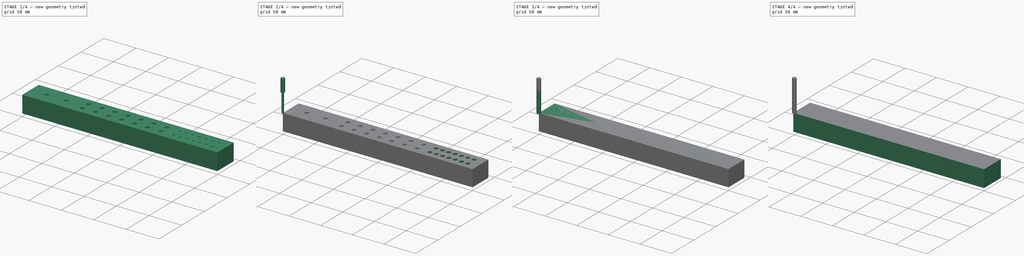
[diagram: build sequence overview — one tinted view per stage of 4, left to right]
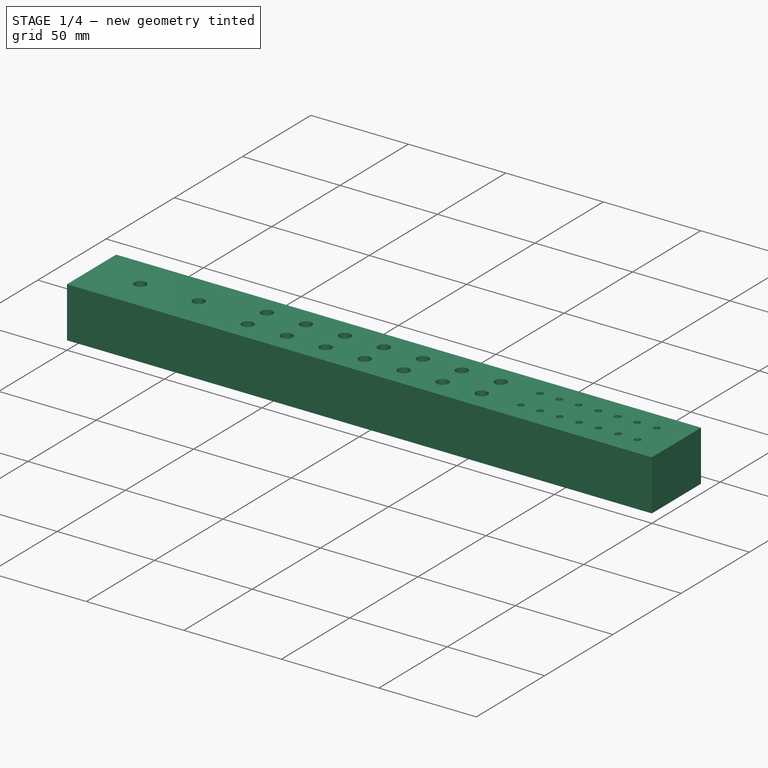
[diagram: stage 1 of 4 — iso view after this stage's code; geometry added in this stage tinted green]
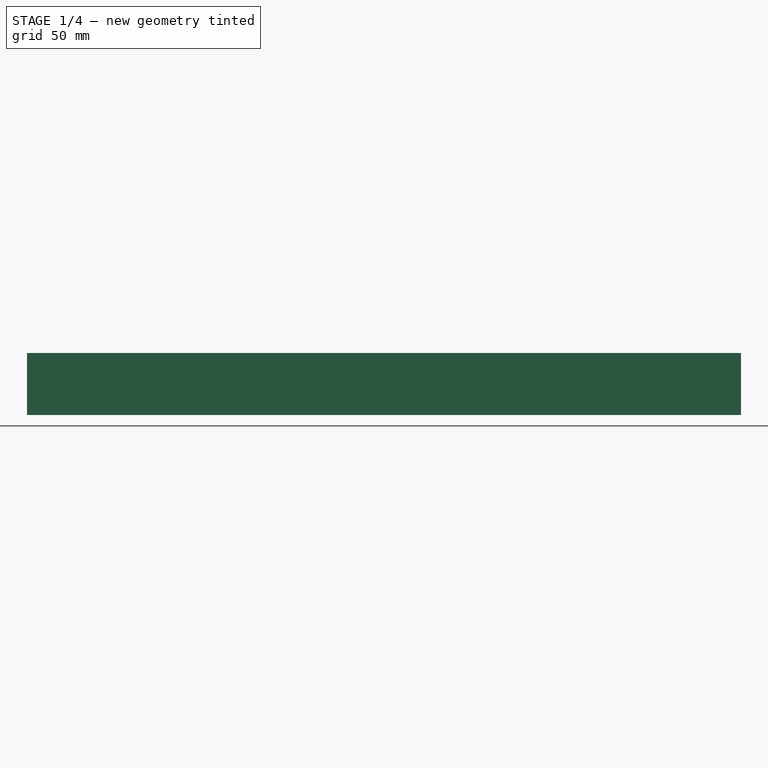
[diagram: stage 1 of 4 — front view after this stage's code; geometry added in this stage tinted green]
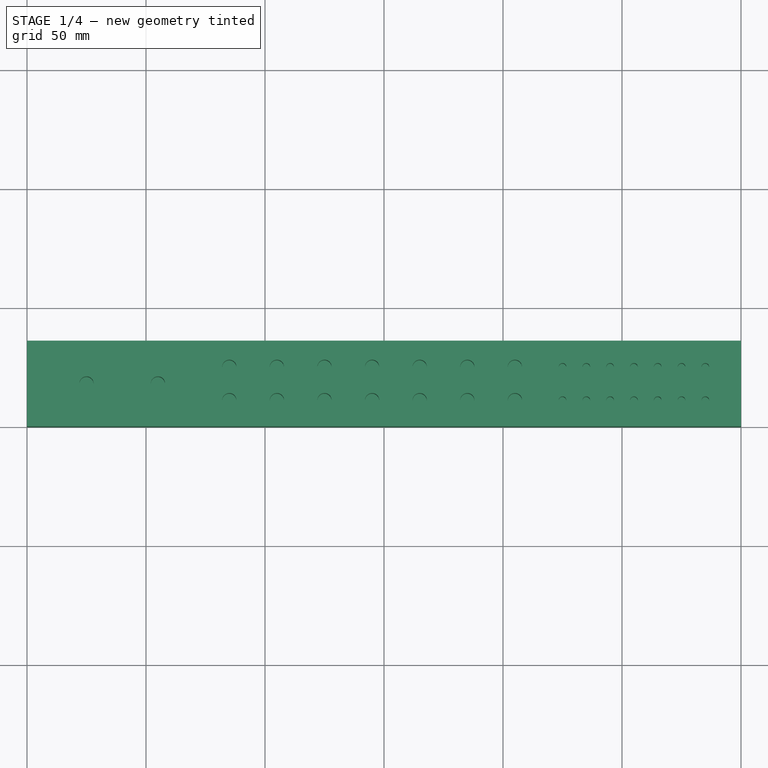
[diagram: stage 1 of 4 — top view after this stage's code; geometry added in this stage tinted green]
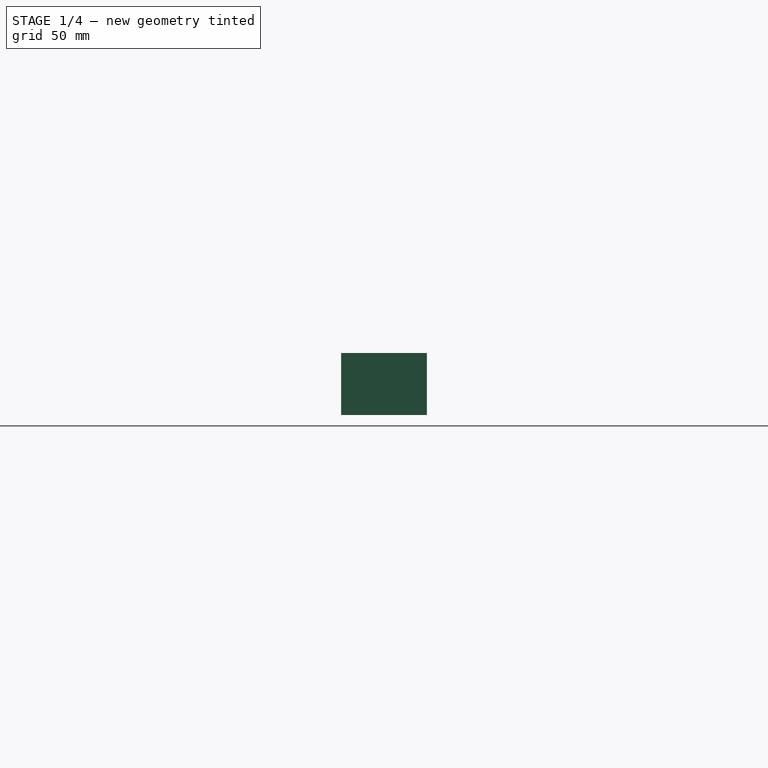
[diagram: stage 1 of 4 — right view after this stage's code; geometry added in this stage tinted green]
FCSTD DOCUMENT  (FreeCAD 0.19R24267 (Git))
Label: bit-organizer
License: All rights reserved
LicenseURL: http://en.wikipedia.org/wiki/All_rights_reserved
objects: Path::FeaturePython×10, Part::FeaturePython×9, App::DocumentObjectGroup×6, Sketcher::SketchObject×4, PartDesign::Pocket×3, App::FeaturePython×3, Path::FeatureCompoundPython×3, PartDesign::Pad×1, PartDesign::Body×1
note: 23 computed .brp shape members not serialized (recipe doc carries the construction recipe); baked Part::Feature solids carry a one-line shape summary decoded from their .brp

FEATURE [Sketcher::SketchObject] Sketch
  FullyConstrained = true
  MapMode = 5
  Support = -> [XY_Plane]
  sketch-geometry (4):
    g0: LineSegment StartX=0 StartY=36 StartZ=0 EndX=300 EndY=36 EndZ=0
    g1: LineSegment StartX=300 StartY=36 StartZ=0 EndX=300 EndY=0 EndZ=0
    g2: LineSegment StartX=300 StartY=0 StartZ=0 EndX=0 EndY=0 EndZ=0
    g3: LineSegment StartX=0 StartY=0 StartZ=0 EndX=0 EndY=36 EndZ=0
  constraints (11):
    c: Coincident(g0,g1)
    c: Coincident(g1,g2)
    c: Coincident(g2,g3)
    c: Coincident(g3,g0)
    c: Horizontal(g0)
    c: Horizontal(g2)
    c: Vertical(g1)
    c: Vertical(g3)
    c: Coincident(g2,g-1)
    c: Distance(g3) = 36
    c: Distance(g0) = 300
FEATURE [PartDesign::Pad] Pad
  Direction = (1,1,1)
  Length = 26
  Length2 = 100
  Profile = -> Sketch
  Reversed = true
  Type = 0
FEATURE [Sketcher::SketchObject] Sketch001
  ExternalGeometry = -> [Pad]
  FullyConstrained = true
  MapMode = 5
  Support = -> [Pad]
  sketch-geometry (65):
    g0: LineSegment StartX=25 StartY=18 StartZ=0 EndX=55 EndY=18 EndZ=0
    g1: LineSegment StartX=55 StartY=18 StartZ=0 EndX=85 EndY=18 EndZ=0
    g2: LineSegment StartX=85 StartY=25 StartZ=0 EndX=105 EndY=25 EndZ=0
    g3: LineSegment StartX=105 StartY=25 StartZ=0 EndX=125 EndY=25 EndZ=0
    g4: LineSegment StartX=125 StartY=25 StartZ=0 EndX=145 EndY=25 EndZ=0
    g5: LineSegment StartX=145 StartY=25 StartZ=0 EndX=165 EndY=25 EndZ=0
    g6: LineSegment StartX=165 StartY=25 StartZ=0 EndX=185 EndY=25 EndZ=0
    g7: LineSegment StartX=225 StartY=25 StartZ=0 EndX=235 EndY=25 EndZ=0
    g8: LineSegment StartX=235 StartY=25 StartZ=0 EndX=225 EndY=25 EndZ=0
    g9: LineSegment StartX=225 StartY=25 StartZ=0 EndX=235 EndY=25 EndZ=0
    g10: LineSegment StartX=235 StartY=25 StartZ=0 EndX=245 EndY=25 EndZ=0
    g11: LineSegment StartX=245 StartY=25 StartZ=0 EndX=255 EndY=25 EndZ=0
    g12: LineSegment StartX=255 StartY=25 StartZ=0 EndX=265 EndY=25 EndZ=0
    g13: LineSegment StartX=265 StartY=25 StartZ=0 EndX=275 EndY=25 EndZ=0
    g14: LineSegment StartX=85 StartY=11 StartZ=0 EndX=105 EndY=11 EndZ=0
    g15: LineSegment StartX=105 StartY=11 StartZ=0 EndX=125 EndY=11 EndZ=0
    g16: LineSegment StartX=125 StartY=11 StartZ=0 EndX=145 EndY=11 EndZ=0
    g17: LineSegment StartX=145 StartY=11 StartZ=0 EndX=165 EndY=11 EndZ=0
    g18: LineSegment StartX=165 StartY=11 StartZ=0 EndX=185 EndY=11 EndZ=0
    g19: LineSegment StartX=225 StartY=11 StartZ=0 EndX=235 EndY=11 EndZ=0
    g20: LineSegment StartX=235 StartY=11 StartZ=0 EndX=245 EndY=11 EndZ=0
    g21: LineSegment StartX=245 StartY=11 StartZ=0 EndX=255 EndY=11 EndZ=0
    g22: LineSegment StartX=255 StartY=11 StartZ=0 EndX=265 EndY=11 EndZ=0
    g23: LineSegment StartX=265 StartY=11 StartZ=0 EndX=275 EndY=11 EndZ=0
    g24: LineSegment StartX=275 StartY=11 StartZ=0 EndX=285 EndY=11 EndZ=0
    g25: LineSegment StartX=85 StartY=36 StartZ=0 EndX=85 EndY=0 EndZ=0
    g26: LineSegment StartX=25 StartY=18 StartZ=0 EndX=0 EndY=18 EndZ=0
    g27: LineSegment StartX=0 StartY=18 StartZ=0 EndX=0 EndY=0 EndZ=0
    g28: LineSegment StartX=275 StartY=25 StartZ=0 EndX=285 EndY=25 EndZ=0
    g29: LineSegment StartX=185 StartY=25 StartZ=0 EndX=205 EndY=25 EndZ=0
    g30: LineSegment StartX=205 StartY=25 StartZ=0 EndX=225 EndY=25 EndZ=0
    g31: LineSegment StartX=185 StartY=11 StartZ=0 EndX=205 EndY=11 EndZ=0
    g32: LineSegment StartX=205 StartY=11 StartZ=0 EndX=225 EndY=11 EndZ=0
    g33: LineSegment StartX=285 StartY=36 StartZ=0 EndX=285 EndY=25 EndZ=0
    g34: LineSegment StartX=285 StartY=0 StartZ=0 EndX=285 EndY=11 EndZ=0
    g35: Circle CenterX=25 CenterY=18 CenterZ=0 NormalX=0 NormalY=0 NormalZ=1 AngleXU=0 Radius=3
    g36: Circle CenterX=55 CenterY=18 CenterZ=0 NormalX=0 NormalY=0 NormalZ=1 AngleXU=0 Radius=3
    g37: Circle CenterX=85 CenterY=25 CenterZ=0 NormalX=0 NormalY=0 NormalZ=1 AngleXU=0 Radius=3
    g38: Circle CenterX=105 CenterY=25 CenterZ=0 NormalX=0 NormalY=0 NormalZ=1 AngleXU=0 Radius=3
    g39: Circle CenterX=125 CenterY=25 CenterZ=0 NormalX=0 NormalY=0 NormalZ=1 AngleXU=0 Radius=3
    g40: Circle CenterX=145 CenterY=25 CenterZ=0 NormalX=0 NormalY=0 NormalZ=1 AngleXU=0 Radius=3
    g41: Circle CenterX=165 CenterY=25 CenterZ=0 NormalX=0 NormalY=0 NormalZ=1 AngleXU=0 Radius=3
    g42: Circle CenterX=185 CenterY=25 CenterZ=0 NormalX=0 NormalY=0 NormalZ=1 AngleXU=0 Radius=3
    g43: Circle CenterX=205 CenterY=25 CenterZ=0 NormalX=0 NormalY=0 NormalZ=1 AngleXU=0 Radius=3
    g44: Circle CenterX=225 CenterY=25 CenterZ=0 NormalX=0 NormalY=0 NormalZ=1 AngleXU=0 Radius=1.6
    g45: Circle CenterX=235 CenterY=25 CenterZ=0 NormalX=0 NormalY=0 NormalZ=1 AngleXU=0 Radius=1.6
    g46: Circle CenterX=245 CenterY=25 CenterZ=0 NormalX=0 NormalY=0 NormalZ=1 AngleXU=0 Radius=1.6
    g47: Circle CenterX=255 CenterY=25 CenterZ=0 NormalX=0 NormalY=0 NormalZ=1 AngleXU=0 Radius=1.6
    g48: Circle CenterX=265 CenterY=25 CenterZ=0 NormalX=0 NormalY=0 NormalZ=1 AngleXU=0 Radius=1.6
    g49: Circle CenterX=275 CenterY=25 CenterZ=0 NormalX=0 NormalY=0 NormalZ=1 AngleXU=0 Radius=1.6
    g50: Circle CenterX=285 CenterY=25 CenterZ=0 NormalX=0 NormalY=0 NormalZ=1 AngleXU=0 Radius=1.6
    g51: Circle CenterX=85 CenterY=11 CenterZ=0 NormalX=0 NormalY=0 NormalZ=1 AngleXU=0 Radius=3
    g52: Circle CenterX=105 CenterY=11 CenterZ=0 NormalX=0 NormalY=0 NormalZ=1 AngleXU=0 Radius=3
    g53: Circle CenterX=125 CenterY=11 CenterZ=0 NormalX=0 NormalY=0 NormalZ=1 AngleXU=0 Radius=3
    g54: Circle CenterX=145 CenterY=11 CenterZ=0 NormalX=0 NormalY=0 NormalZ=1 AngleXU=0 Radius=3
    g55: Circle CenterX=165 CenterY=11 CenterZ=0 NormalX=0 NormalY=0 NormalZ=1 AngleXU=0 Radius=3
    g56: Circle CenterX=185 CenterY=11 CenterZ=0 NormalX=0 NormalY=0 NormalZ=1 AngleXU=0 Radius=3
    g57: Circle CenterX=205 CenterY=11 CenterZ=0 NormalX=0 NormalY=0 NormalZ=1 AngleXU=0 Radius=3
    g58: Circle CenterX=235 CenterY=11 CenterZ=0 NormalX=0 NormalY=0 NormalZ=1 AngleXU=0 Radius=1.6
    g59: Circle CenterX=245 CenterY=11 CenterZ=0 NormalX=0 NormalY=0 NormalZ=1 AngleXU=0 Radius=1.6
    g60: Circle CenterX=255 CenterY=11 CenterZ=0 NormalX=0 NormalY=0 NormalZ=1 AngleXU=0 Radius=1.6
    g61: Circle CenterX=265 CenterY=11 CenterZ=0 NormalX=0 NormalY=0 NormalZ=1 AngleXU=0 Radius=1.6
    g62: Circle CenterX=275 CenterY=11 CenterZ=0 NormalX=0 NormalY=0 NormalZ=1 AngleXU=0 Radius=1.6
    g63: Circle CenterX=285 CenterY=11 CenterZ=0 NormalX=0 NormalY=0 NormalZ=1 AngleXU=0 Radius=1.6
    g64: Circle CenterX=225 CenterY=11 CenterZ=0 NormalX=0 NormalY=0 NormalZ=1 AngleXU=0 Radius=1.6
  constraints (168):
    c: Horizontal(g0)
    c: Coincident(g0,g1)
    c: Horizontal(g1)
    c: Horizontal(g2)
    c: Coincident(g2,g3)
    c: Coincident(g3,g4)
    c: Coincident(g4,g5)
    c: Horizontal(g5)
    c: Coincident(g5,g6)
    c: Horizontal(g6)
    c: Horizontal(g7)
    c: Coincident(g7,g8)
    c: Horizontal(g8)
    c: Coincident(g8,g9)
    c: Coincident(g9,g10)
    c: Coincident(g10,g11)
    c: Coincident(g11,g12)
    c: Coincident(g12,g13)
    c: Horizontal(g13)
    c: Horizontal(g14)
    c: Coincident(g14,g15)
    c: Coincident(g15,g16)
    c: Horizontal(g16)
    c: Coincident(g16,g17)
    c: Coincident(g17,g18)
    c: Horizontal(g19)
    c: Coincident(g19,g20)
    c: Horizontal(g20)
    c: Coincident(g20,g21)
    c: Horizontal(g21)
    c: Coincident(g21,g22)
    c: Horizontal(g22)
    c: Coincident(g22,g23)
    c: Coincident(g23,g24)
    c: Horizontal(g24)
    c: Horizontal(g15)
    c: Horizontal(g17)
    c: Horizontal(g18)
    c: Horizontal(g23)
    c: Horizontal(g12)
    c: Horizontal(g11)
    c: Horizontal(g10)
    c: Horizontal(g9)
    c: Horizontal(g4)
    c: Horizontal(g3)
    c: Vertical(g25)
    c: PointOnObject(g2,g25)
    c: PointOnObject(g1,g25)
    c: PointOnObject(g14,g25)
    c: PointOnObject(g25,g-3)
    c: PointOnObject(g25,g-1)
    c: Coincident(g26,g0)
    c: PointOnObject(g26,g-2)
    c: Horizontal(g26)
    c: Coincident(g26,g27)
    c: Coincident(g27,g-1)
    c: Distance(g27) = 18
    c: Equal(g0,g1)
    c: Distance(g0) = 30
    c: Distance(g26) = 25
    c: Distance(g14) = 20
    c: Equal(g2,g3)
    c: Equal(g3,g4)
    c: Equal(g4,g5)
    c: Equal(g5,g6)
    c: Equal(g15,g14)
    c: Equal(g17,g16)
    c: Equal(g16,g14)
    c: Distance(g19) = 10
    c: Equal(g19,g7)
    c: Equal(g7,g8)
    c: Equal(g8,g9)
    c: Equal(g9,g10)
    c: Equal(g10,g11)
    c: Equal(g11,g12)
    c: Equal(g12,g20)
    c: Equal(g20,g21)
    c: Equal(g21,g22)
    c: Equal(g22,g23)
    c: Equal(g23,g24)
    c: Horizontal(g28)
    c: Coincident(g28,g13)
    c: Equal(g28,g13)
    c: Equal(g13,g19)
    c: Coincident(g6,g29)
    c: Horizontal(g29)
    c: Coincident(g29,g30)
    c: Coincident(g30,g7)
    c: Horizontal(g30)
    c: Coincident(g18,g31)
    c: Coincident(g31,g32)
    c: Coincident(g32,g19)
    c: Horizontal(g32)
    c: Horizontal(g31)
    c: Equal(g29,g30)
    c: Equal(g30,g32)
    c: Equal(g32,g31)
    c: Equal(g31,g14)
    c: Equal(g18,g14)
    c: Equal(g2,g14)
    c: Vertical(g33)
    c: Coincident(g28,g33)
    c: Coincident(g24,g34)
    c: Vertical(g34)
    c: PointOnObject(g33,g-3)
    c: PointOnObject(g34,g-1)
    c: Diameter(g35) = 6
    c: Equal(g42,g43)
    c: Equal(g43,g41)
    c: Equal(g41,g40)
    c: Equal(g40,g39)
    c: Equal(g39,g38)
    c: Equal(g38,g37)
    c: Equal(g37,g36)
    c: Equal(g36,g35)
    c: Equal(g51,g52)
    c: Equal(g52,g53)
    c: Equal(g53,g54)
    c: Equal(g54,g55)
    c: Equal(g55,g56)
    c: Equal(g56,g57)
    c: Coincident(g35,g0)
    c: Coincident(g36,g0)
    c: Coincident(g37,g2)
    c: Coincident(g38,g2)
    c: Coincident(g39,g3)
    c: Coincident(g40,g4)
    c: Coincident(g41,g5)
    c: Coincident(g42,g6)
    c: Coincident(g29,g43)
    c: Coincident(g44,g7)
    c: Coincident(g51,g14)
    c: Coincident(g52,g14)
    c: Coincident(g53,g15)
    c: Coincident(g54,g16)
    c: Coincident(g55,g17)
    c: Coincident(g56,g18)
    c: Coincident(g57,g31)
    c: Equal(g51,g35)
    c: Coincident(g45,g7)
    c: Coincident(g46,g10)
    c: Coincident(g47,g11)
    c: Coincident(g48,g12)
    c: Coincident(g49,g13)
    c: Coincident(g50,g28)
    c: Coincident(g63,g24)
    c: Coincident(g62,g23)
    c: Coincident(g61,g22)
    c: Coincident(g60,g21)
    c: Coincident(g20,g59)
    c: Coincident(g58,g19)
    c: Coincident(g19,g64)
    c: Diameter(g64) = 3.2
    c: Equal(g58,g59)
    c: Equal(g59,g60)
    c: Equal(g60,g61)
    c: Equal(g61,g62)
    c: Equal(g62,g63)
    c: Equal(g63,g64)
    c: Equal(g47,g46)
    c: Equal(g46,g45)
    c: Equal(g45,g44)
    c: Equal(g44,g48)
    c: Equal(g48,g49)
    c: Equal(g49,g50)
    c: Equal(g50,g64)
    c: Equal(g33,g34)
    c: Distance(g33) = 11
FEATURE [PartDesign::Pocket] Pocket  label="Top"
  BaseFeature = -> Pad
  Length = 20
  Length2 = 100
  Profile = -> Sketch001
  Type = 0
FEATURE [Sketcher::SketchObject] Sketch002
  ExternalGeometry = -> [Pocket]
  FullyConstrained = true
  MapMode = 5
  Placement = pos=(0,0,-26) rot=(1,0,0;3.14159rad)
  Support = -> [Pocket]
  sketch-geometry (5):
    g0: Circle CenterX=80 CenterY=-18 CenterZ=0 NormalX=0 NormalY=0 NormalZ=1 AngleXU=0 Radius=3
    g1: Circle CenterX=220 CenterY=-18 CenterZ=0 NormalX=0 NormalY=0 NormalZ=1 AngleXU=0 Radius=3
    g2: LineSegment StartX=0 StartY=-18 StartZ=0 EndX=80 EndY=-18 EndZ=0
    g3: LineSegment StartX=80 StartY=-18 StartZ=0 EndX=220 EndY=-18 EndZ=0
    g4: LineSegment StartX=220 StartY=-18 StartZ=0 EndX=300 EndY=-18 EndZ=0
  constraints (14):
    c: Coincident(g2,g3)
    c: Horizontal(g3)
    c: Coincident(g3,g4)
    c: Horizontal(g2)
    c: Horizontal(g4)
    c: PointOnObject(g2,g-2)
    c: PointOnObject(g4,g-3)
    c: Coincident(g2,g0)
    c: Coincident(g3,g1)
    c: Diameter(g0) = 6
    c: Diameter(g1) = 6
    c: Distance(g2) = 80
    c: Distance(g4) = 80
    c: Distance(g2,g-5) = 18
FEATURE [PartDesign::Pocket] Pocket001  label="Bottom"
  BaseFeature = -> Pocket
  Length = 15
  Length2 = 100
  Profile = -> Sketch002
  Type = 0
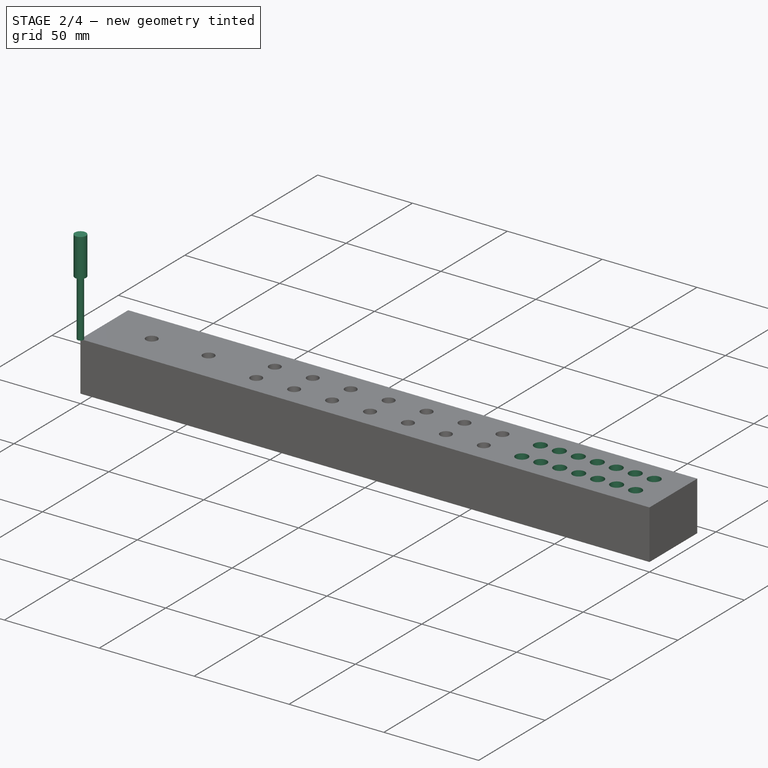
[diagram: stage 2 of 4 — iso view after this stage's code; geometry added in this stage tinted green]
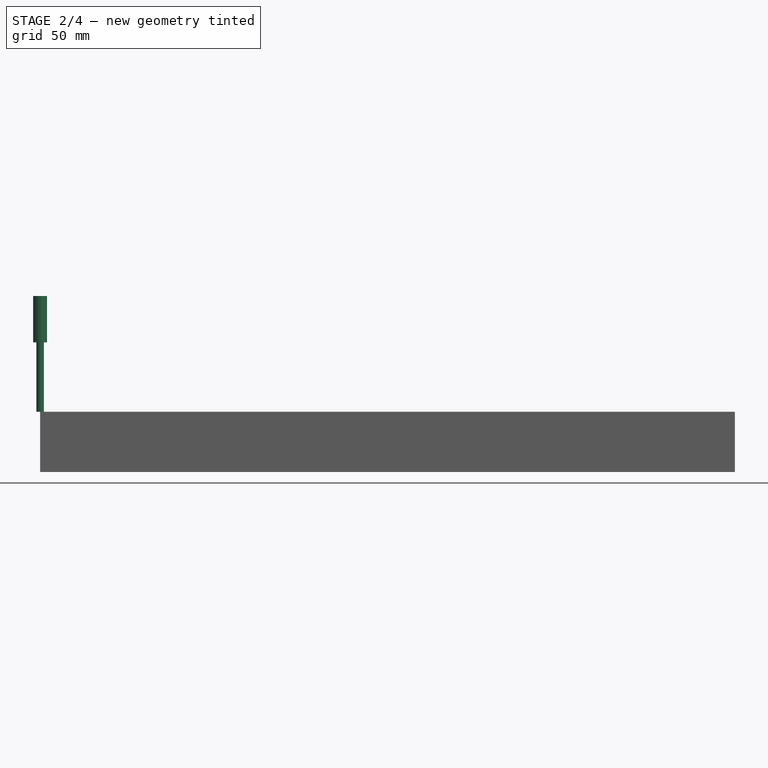
[diagram: stage 2 of 4 — front view after this stage's code; geometry added in this stage tinted green]
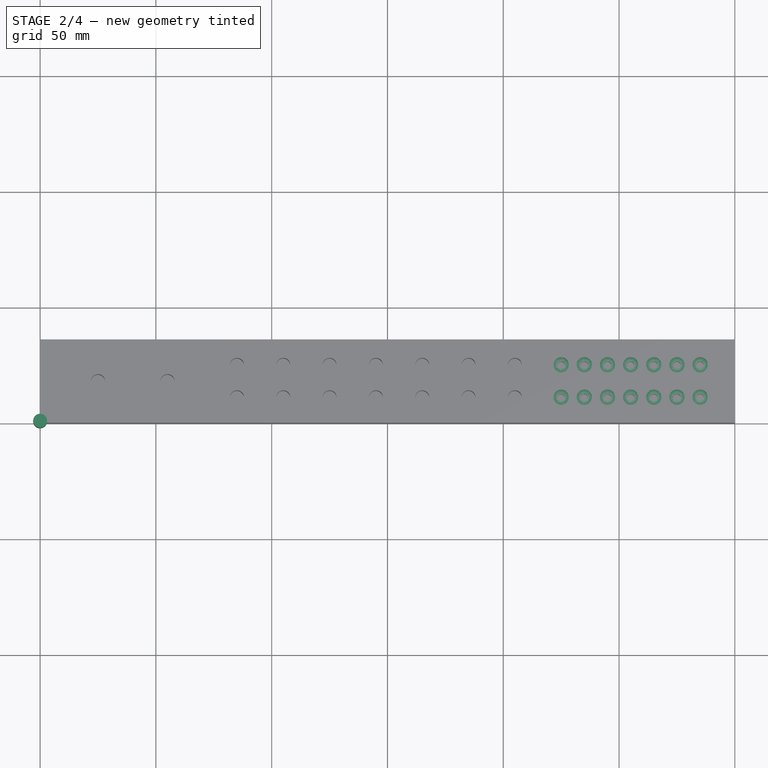
[diagram: stage 2 of 4 — top view after this stage's code; geometry added in this stage tinted green]
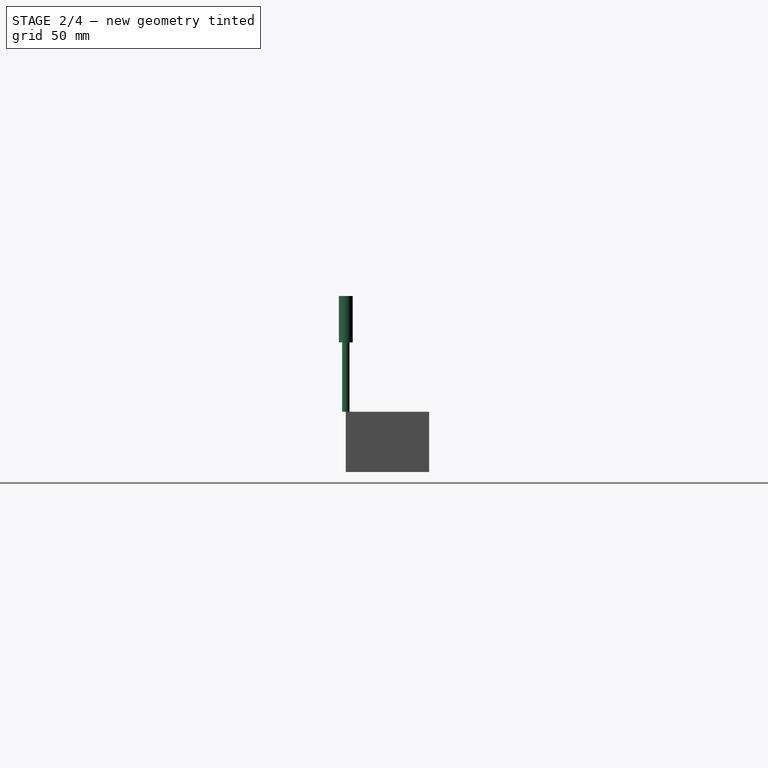
[diagram: stage 2 of 4 — right view after this stage's code; geometry added in this stage tinted green]
FEATURE [Path::FeaturePython] claas_6mm_endmill  label="claas_6mm_endmill001"  # Path/CAM operation (typed FeaturePython)
  HorizFeed = 6
  HorizRapid = 0
  SpindleDir = 0
  SpindleSpeed = 0
  Tool = -> ToolBit002
  ToolNumber = 1
  VertFeed = 6
  VertRapid = 0
  expr: HorizRapid = SetupSheet.HorizRapid
  expr: VertRapid = SetupSheet.VertRapid
FEATURE [App::DocumentObjectGroup] Tools
  Group = -> [claas_6mm_endmill]
FEATURE [App::FeaturePython] SetupSheet001  # Path/CAM operation (typed FeaturePython)
  ClearanceHeightExpression = OpStockZMax+SetupSheet001.ClearanceHeightOffset
  ClearanceHeightOffset = 5
  CoolantMode = 0
  CoolantModes = None | Flood | Mist
  FinalDepthExpression = OpFinalDepth
  HorizRapid = 0
  SafeHeightExpression = OpStockZMax+SetupSheet001.SafeHeightOffset
  SafeHeightOffset = 3
  StartDepthExpression = OpStartDepth
  StepDownExpression = OpToolDiameter
  VertRapid = 0
FEATURE [Part::FeaturePython] ToolBit003  label="claas_3mm_endmil002"  # Path/CAM toolbit (typed FeaturePython)
  BitPropertyNames = Chipload | CuttingEdgeHeight | Diameter | Flutes | Length | Material | ShankDiameter
  BitShape = <userpath>/Downloads/FreeCAD_0.19.24267_Win-LPv12.5.1_vc17.x-x86-64/Mod/Path/Tools/Shape/endmill.fcstd
  Chipload = 0
  CuttingEdgeHeight = 30
  Diameter = 3.2
  File = <userpath>/Downloads/bits/Bit/claas_3mm.fctb
  Flutes = 0
  Length = 50
  Material = 0
  ShankDiameter = 6
  ShapeName = endmill
FEATURE [Path::FeaturePython] claas_6mm_endmill004  label="claas_6mm_endmill005"  # Path/CAM operation (typed FeaturePython)
  HorizFeed = 6
  HorizRapid = 0
  SpindleDir = 0
  SpindleSpeed = 0
  Tool = -> ToolBit005
  ToolNumber = 1
  VertFeed = 6
  VertRapid = 0
  expr: HorizRapid = SetupSheet002.HorizRapid
  expr: VertRapid = SetupSheet002.VertRapid
FEATURE [App::DocumentObjectGroup] Tools002
  Group = -> [claas_6mm_endmill004]
FEATURE [Sketcher::SketchObject] Sketch003
  ExternalGeometry = -> [Pocket]
  FullyConstrained = true
  MapMode = 5
  Support = -> [Pocket]
  sketch-geometry (14):
    g0: Circle CenterX=225 CenterY=11 CenterZ=0 NormalX=0 NormalY=0 NormalZ=1 AngleXU=0 Radius=3.25
    g1: Circle CenterX=235 CenterY=11 CenterZ=0 NormalX=0 NormalY=0 NormalZ=1 AngleXU=0 Radius=3.25
    g2: Circle CenterX=245 CenterY=11 CenterZ=0 NormalX=0 NormalY=0 NormalZ=1 AngleXU=0 Radius=3.25
    g3: Circle CenterX=255 CenterY=11 CenterZ=0 NormalX=0 NormalY=0 NormalZ=1 AngleXU=0 Radius=3.25
    g4: Circle CenterX=265 CenterY=11 CenterZ=0 NormalX=0 NormalY=0 NormalZ=1 AngleXU=0 Radius=3.25
    g5: Circle CenterX=275 CenterY=11 CenterZ=0 NormalX=0 NormalY=0 NormalZ=1 AngleXU=0 Radius=3.25
    g6: Circle CenterX=285 CenterY=11 CenterZ=0 NormalX=0 NormalY=0 NormalZ=1 AngleXU=0 Radius=3.25
    g7: Circle CenterX=225 CenterY=25 CenterZ=0 NormalX=0 NormalY=0 NormalZ=1 AngleXU=0 Radius=3.25
    g8: Circle CenterX=235 CenterY=25 CenterZ=0 NormalX=0 NormalY=0 NormalZ=1 AngleXU=0 Radius=3.25
    g9: Circle CenterX=245 CenterY=25 CenterZ=0 NormalX=0 NormalY=0 NormalZ=1 AngleXU=0 Radius=3.25
    g10: Circle CenterX=255 CenterY=25 CenterZ=0 NormalX=0 NormalY=0 NormalZ=1 AngleXU=0 Radius=3.25
    g11: Circle CenterX=265 CenterY=25 CenterZ=0 NormalX=0 NormalY=0 NormalZ=1 AngleXU=0 Radius=3.25
    g12: Circle CenterX=275 CenterY=25 CenterZ=0 NormalX=0 NormalY=0 NormalZ=1 AngleXU=0 Radius=3.25
    g13: Circle CenterX=285 CenterY=25 CenterZ=0 NormalX=0 NormalY=0 NormalZ=1 AngleXU=0 Radius=3.25
  constraints (28):
    c: Diameter(g0) = 6.5
    c: Equal(g13,g12)
    c: Equal(g12,g11)
    c: Equal(g11,g10)
    c: Equal(g10,g9)
    c: Equal(g9,g8)
    c: Equal(g8,g7)
    c: Equal(g7,g0)
    c: Equal(g0,g1)
    c: Equal(g1,g2)
    c: Equal(g2,g3)
    c: Equal(g3,g4)
    c: Equal(g4,g5)
    c: Equal(g5,g6)
    c: Coincident(g7,g-15)
    c: Coincident(g8,g-14)
    c: Coincident(g-13,g9)
    c: Coincident(g-12,g10)
    c: Coincident(g11,g-11)
    c: Coincident(g12,g-10)
    c: Coincident(g13,g-9)
    c: Coincident(g6,g-8)
    c: Coincident(g5,g-7)
    c: Coincident(g4,g-6)
    c: Coincident(g3,g-5)
    c: Coincident(g2,g-4)
    c: Coincident(g1,g-3)
    c: Coincident(g0,g-16)
FEATURE [PartDesign::Pocket] Pocket002
  BaseFeature = -> Pocket001
  Length = 7
  Length2 = 100
  Profile = -> Sketch003
  Type = 0
FEATURE [Part::FeaturePython] Clone001  label="Model-Body001"  # Draft clone (typed FeaturePython)
  AttacherType = Attacher::AttachEngine3D
  Fuse = false
  Objects = -> [Body]
  PathResource = Model
  Scale = (1,1,1)
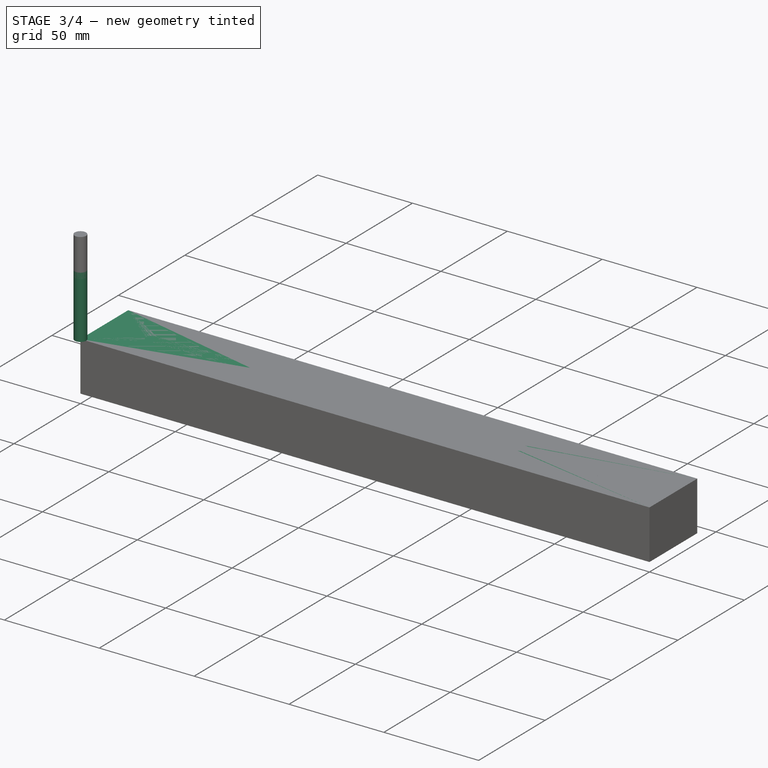
[diagram: stage 3 of 4 — iso view after this stage's code; geometry added in this stage tinted green]
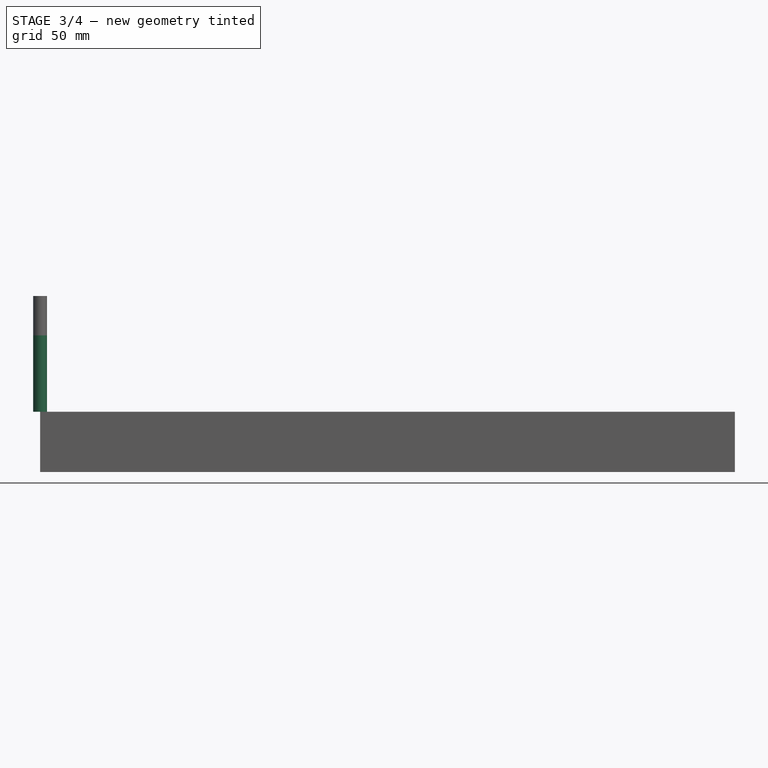
[diagram: stage 3 of 4 — front view after this stage's code; geometry added in this stage tinted green]
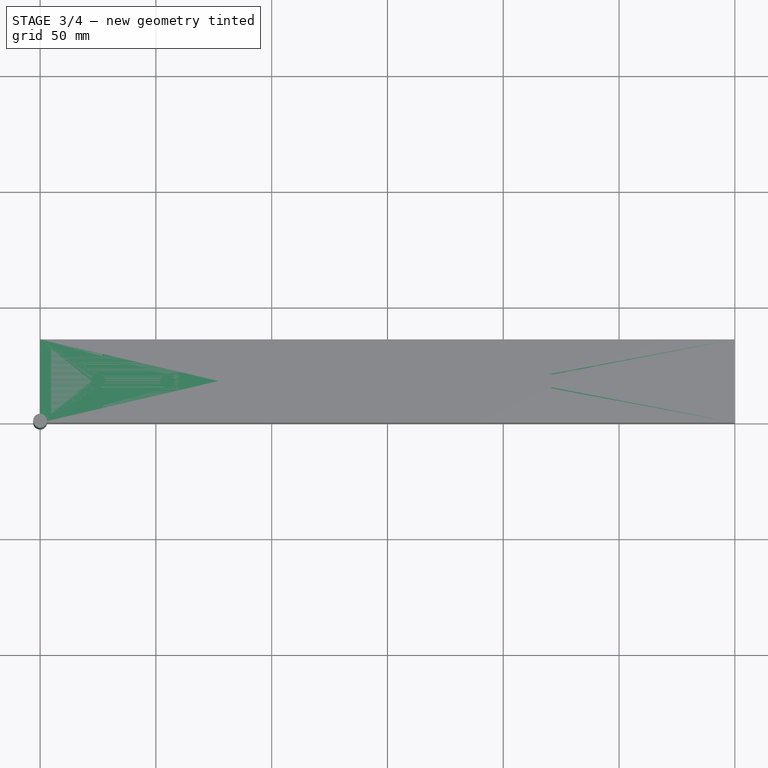
[diagram: stage 3 of 4 — top view after this stage's code; geometry added in this stage tinted green]
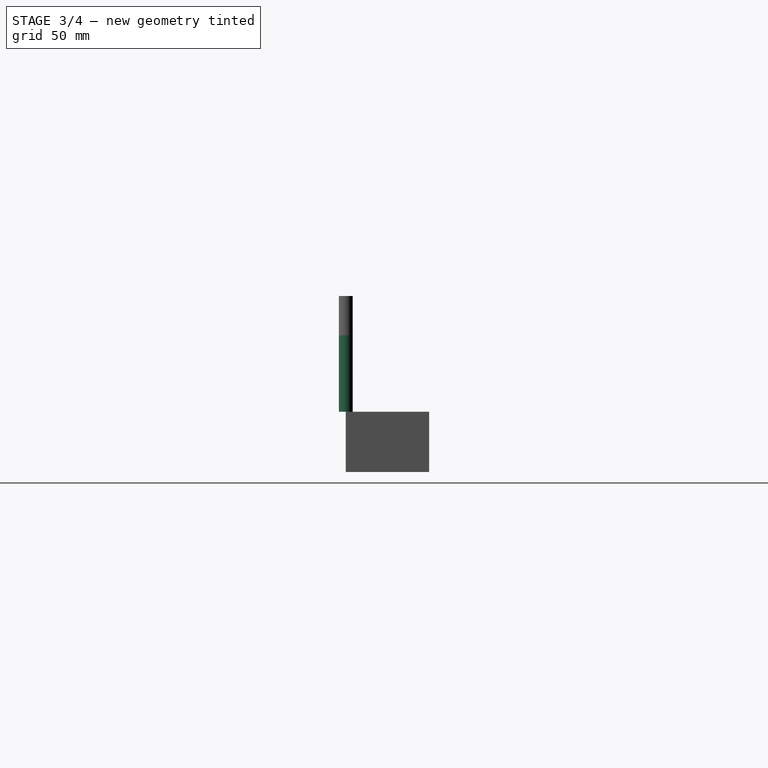
[diagram: stage 3 of 4 — right view after this stage's code; geometry added in this stage tinted green]
FEATURE [App::FeaturePython] SetupSheet  # Path/CAM operation (typed FeaturePython)
  ClearanceHeightExpression = OpStockZMax+SetupSheet.ClearanceHeightOffset
  ClearanceHeightOffset = 5
  CoolantMode = 0
  CoolantModes = None | Flood | Mist
  FinalDepthExpression = OpFinalDepth
  HorizRapid = 0
  SafeHeightExpression = OpStockZMax+SetupSheet.SafeHeightOffset
  SafeHeightOffset = 3
  StartDepthExpression = OpStartDepth
  StepDownExpression = OpToolDiameter
  VertRapid = 0
FEATURE [Part::FeaturePython] ToolBit002  label="claas_6mm_endmill"  # Path/CAM toolbit (typed FeaturePython)
  BitPropertyNames = Chipload | CuttingEdgeHeight | Diameter | Flutes | Length | Material | ShankDiameter
  BitShape = <userpath>/Downloads/FreeCAD_0.19.24267_Win-LPv12.5.1_vc17.x-x86-64/Mod/Path/Tools/Shape/endmill.fcstd
  Chipload = 0
  CuttingEdgeHeight = 15
  Diameter = 6
  File = <userpath>/Downloads/bits/Bit/claas_6mm.fctb
  Flutes = 0
  Length = 33
  Material = 0
  ShankDiameter = 6
  ShapeName = endmill
FEATURE [Path::FeaturePython] claas_3mm_endmil002  label="claas_3mm_endmil003"  # Path/CAM operation (typed FeaturePython)
  HorizFeed = 6
  HorizRapid = 0
  SpindleDir = 0
  SpindleSpeed = 0
  Tool = -> ToolBit003
  ToolNumber = 1
  VertFeed = 6
  VertRapid = 0
  expr: HorizRapid = SetupSheet001.HorizRapid
  expr: VertRapid = SetupSheet001.VertRapid
FEATURE [App::DocumentObjectGroup] Tools001
  Group = -> [claas_3mm_endmil002]
FEATURE [App::FeaturePython] SetupSheet002  # Path/CAM operation (typed FeaturePython)
  ClearanceHeightExpression = OpStockZMax+SetupSheet002.ClearanceHeightOffset
  ClearanceHeightOffset = 5
  CoolantMode = 0
  CoolantModes = None | Flood | Mist
  FinalDepthExpression = OpFinalDepth
  HorizRapid = 0
  SafeHeightExpression = OpStockZMax+SetupSheet002.SafeHeightOffset
  SafeHeightOffset = 3
  StartDepthExpression = OpStartDepth
  StepDownExpression = OpToolDiameter
  VertRapid = 0
FEATURE [Part::FeaturePython] ToolBit005  label="claas_6mm_endmill004"  # Path/CAM toolbit (typed FeaturePython)
  BitPropertyNames = Chipload | CuttingEdgeHeight | Diameter | Flutes | Length | Material | ShankDiameter
  BitShape = <userpath>/Downloads/FreeCAD_0.19.24267_Win-LPv12.5.1_vc17.x-x86-64/Mod/Path/Tools/Shape/endmill.fcstd
  Chipload = 0
  CuttingEdgeHeight = 15
  Diameter = 6
  File = <userpath>/Downloads/bits/Bit/claas_6mm.fctb
  Flutes = 0
  Length = 33
  Material = 0
  ShankDiameter = 6
  ShapeName = endmill
FEATURE [PartDesign::Body] Body
  Group = -> [Sketch,Pad,Sketch001,Pocket,Sketch002,Pocket001,Sketch003,Pocket002]
  Origin = -> Origin
  Tip = -> Pocket002
FEATURE [Part::FeaturePython] Clone  label="Model-Body"  # Draft clone (typed FeaturePython)
  AttacherType = Attacher::AttachEngine3D
  Fuse = false
  Objects = -> [Body]
  PathResource = Model
  Scale = (1,1,1)
FEATURE [Part::FeaturePython] Clone002  label="Model-Body002"  # Draft clone (typed FeaturePython)
  AttacherType = Attacher::AttachEngine3D
  Fuse = false
  Objects = -> [Body]
  PathResource = Model
  Placement = pos=(300,0,-26) rot=(0,1,0;3.14159rad)
  Scale = (1,1,1)
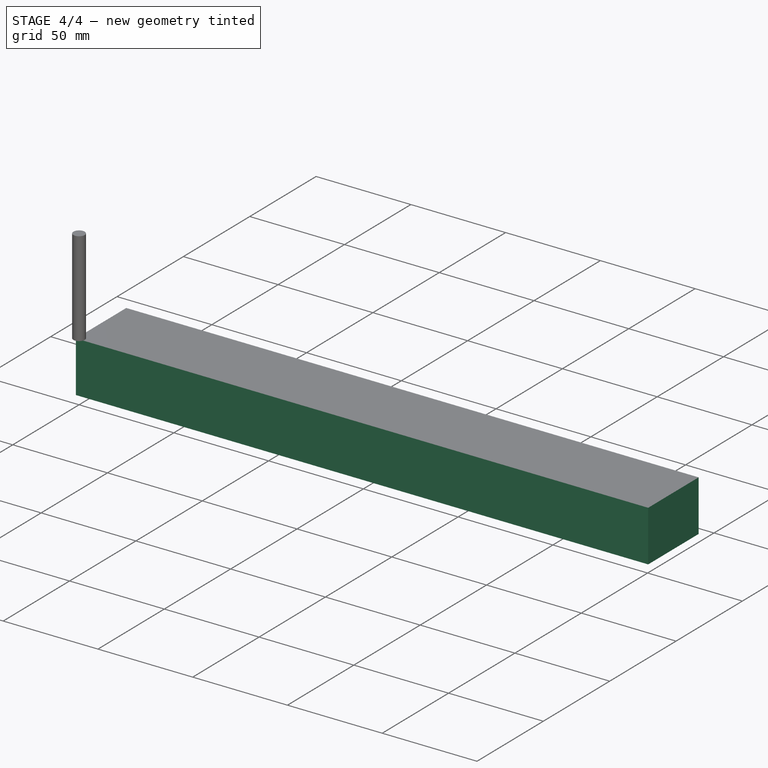
[diagram: stage 4 of 4 — iso view after this stage's code; geometry added in this stage tinted green]
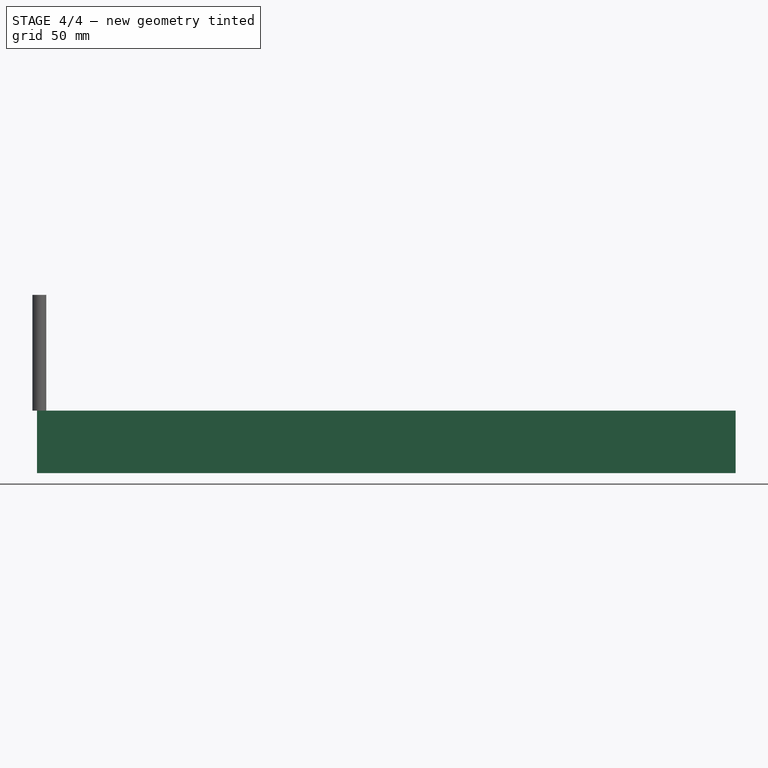
[diagram: stage 4 of 4 — front view after this stage's code; geometry added in this stage tinted green]
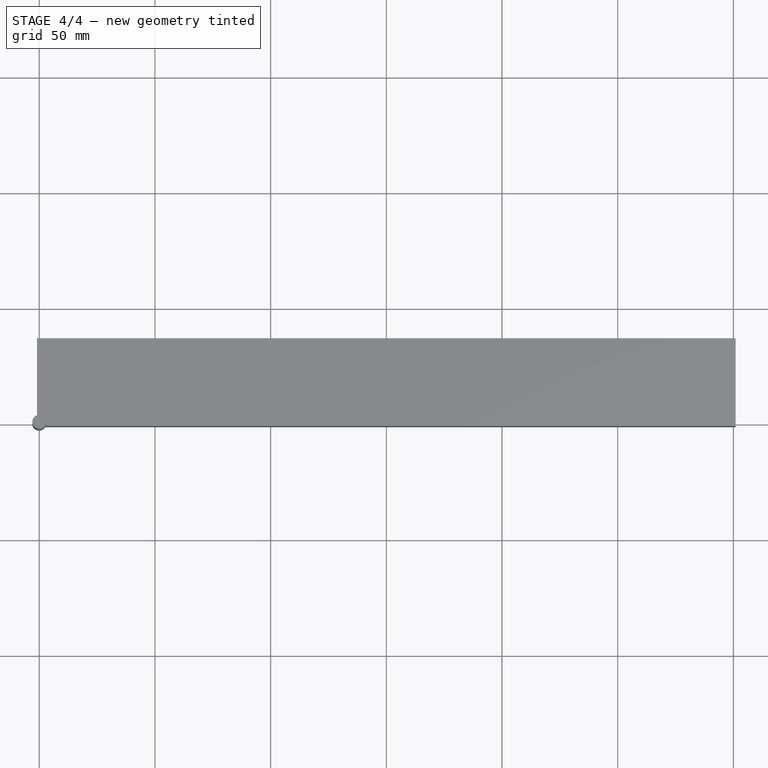
[diagram: stage 4 of 4 — top view after this stage's code; geometry added in this stage tinted green]
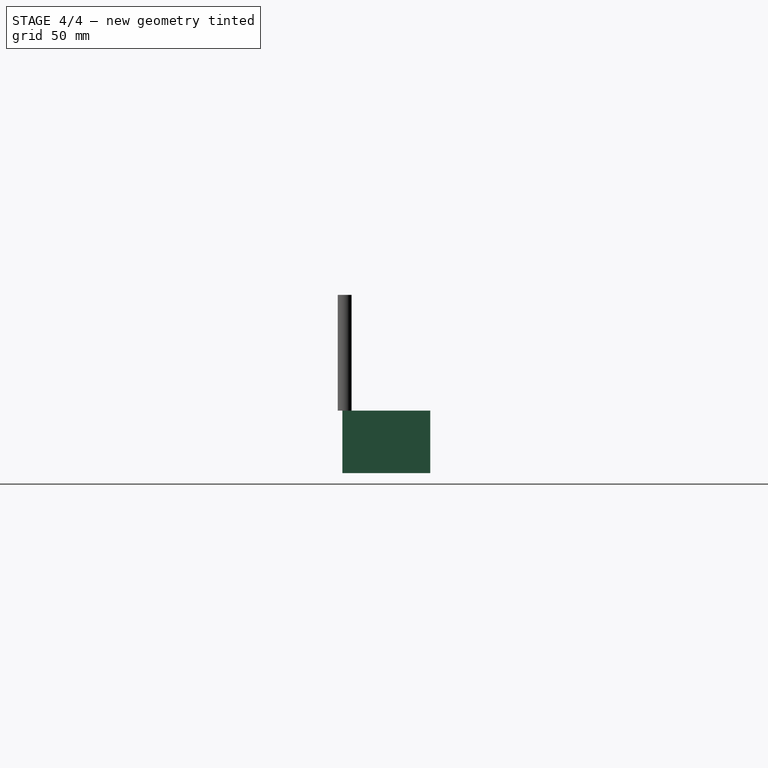
[diagram: stage 4 of 4 — right view after this stage's code; geometry added in this stage tinted green]
FEATURE [App::DocumentObjectGroup] Model
  Group = -> [Clone]
FEATURE [Part::FeaturePython] Stock  # WARN: FeaturePython — macro-defined, semantics opaque (R4)
  Base = -> Model
  ExtXneg = 1
  ExtXpos = 1
  ExtYneg = 1
  ExtYpos = 1
  ExtZneg = 1
  ExtZpos = 0
  Placement = pos=(0,0,-26) rot=(0,0,1;0rad)
  StockType = FromBase
FEATURE [App::DocumentObjectGroup] Model001
  Group = -> [Clone001]
FEATURE [Part::FeaturePython] Stock001  # WARN: FeaturePython — macro-defined, semantics opaque (R4)
  Base = -> Model001
  ExtXneg = 1
  ExtXpos = 1
  ExtYneg = 1
  ExtYpos = 1
  ExtZneg = 1
  ExtZpos = 0
  Placement = pos=(0,0,-26) rot=(0,0,1;0rad)
  StockType = FromBase
FEATURE [App::DocumentObjectGroup] Model002
  Group = -> [Clone002]
FEATURE [Part::FeaturePython] Stock002  # WARN: FeaturePython — macro-defined, semantics opaque (R4)
  Base = -> Model002
  ExtXneg = 1
  ExtXpos = 1
  ExtYneg = 1
  ExtYpos = 1
  ExtZneg = 1
  ExtZpos = 0
  Placement = pos=(0,0,-26) rot=(0,0,1;0rad)
  StockType = FromBase
FEATURE [Path::FeaturePython] Drilling007  # Path/CAM operation (typed FeaturePython)
  Active = true
  AddTipLength = false
  AttemptInverseAngle = false
  Base = -> [Clone002]
  ClearanceHeight = 5
  CoolantMode = None
  CycleTime = 00:00:07
  DwellEnabled = false
  DwellTime = 1
  EnableRotation = 0
  ExtraOffset = 0
  FinalDepth = -15
  InverseAngle = false
  OpFinalDepth = -15
  OpStartDepth = 3.55e-14
  OpStockZMax = 0
  OpStockZMin = -27
  OpToolDiameter = 6
  PeckDepth = 7
  PeckEnabled = true
  RetractHeight = 1
  ReturnLevel = 1
  ReverseDirection = false
  SafeHeight = 3
  StartDepth = 3.55e-14
  ToolController = -> claas_6mm_endmill004
  expr: StartDepth = OpStartDepth
  expr: FinalDepth = OpFinalDepth
  expr: SafeHeight = OpStockZMax + SetupSheet002.SafeHeightOffset
  expr: RetractHeight = OpStartDepth + 1mm
  expr: ClearanceHeight = OpStockZMax + SetupSheet002.ClearanceHeightOffset
  expr: PeckDepth = 7mm
FEATURE [Path::FeatureCompoundPython] Operations002  # Path/CAM operation (typed FeaturePython)
  Group = -> [Drilling007]
  UsePlacements = false
FEATURE [Path::FeaturePython] Job002  label="Bottom001"  # Path/CAM operation (typed FeaturePython)
  CycleTime = 00:00:07
  Fixtures = G54
  GeometryTolerance = 0.01
  LastPostProcessDate = 2021-03-26 19:26:33.599031
  LastPostProcessOutput = <userpath>/git/cnc-projects/bit-organizer/bottom.gcode
  Model = -> Model002
  Operations = -> Operations002
  OrderOutputBy = 0
  PostProcessor = 5
  PostProcessorArgs = --translate_drill
  SetupSheet = -> SetupSheet002
  SplitOutput = false
  Stock = -> Stock002
  Tools = -> Tools002
FEATURE [Path::FeaturePython] Drilling008  # Path/CAM operation (typed FeaturePython)
  Active = true
  AddTipLength = false
  AttemptInverseAngle = false
  Base = -> [Clone001]
  ClearanceHeight = 5
  CoolantMode = None
  CycleTime = 00:00:54
  DwellEnabled = false
  DwellTime = 1
  EnableRotation = 0
  ExtraOffset = 0
  FinalDepth = -20
  InverseAngle = false
  OpFinalDepth = -7
  OpStartDepth = 0
  OpStockZMax = 0
  OpStockZMin = -27
  OpToolDiameter = 3.2
  PeckDepth = 10
  PeckEnabled = true
  RetractHeight = 1
  ReturnLevel = 1
  ReverseDirection = false
  SafeHeight = 3
  StartDepth = 0
  ToolController = -> claas_3mm_endmil002
  expr: StartDepth = OpStartDepth
  expr: FinalDepth = -20mm
  expr: SafeHeight = OpStockZMax + SetupSheet001.SafeHeightOffset
  expr: RetractHeight = OpStartDepth + 1mm
  expr: ClearanceHeight = OpStockZMax + SetupSheet001.ClearanceHeightOffset
  expr: PeckDepth = 10mm
FEATURE [Path::FeaturePython] Drilling  # Path/CAM operation (typed FeaturePython)
  Active = true
  AddTipLength = false
  AttemptInverseAngle = false
  Base = -> [Clone]
  ClearanceHeight = 5
  CoolantMode = None
  CycleTime = 00:01:02
  DwellEnabled = false
  DwellTime = 1
  EnableRotation = 0
  ExtraOffset = 0
  FinalDepth = -20
  InverseAngle = false
  OpFinalDepth = -20
  OpStartDepth = 0
  OpStockZMax = 0
  OpStockZMin = -27
  OpToolDiameter = 6
  PeckDepth = 10
  PeckEnabled = true
  RetractHeight = 1
  ReturnLevel = 1
  ReverseDirection = false
  SafeHeight = 3
  StartDepth = 0
  ToolController = -> claas_6mm_endmill
  expr: StartDepth = OpStartDepth
  expr: FinalDepth = OpFinalDepth
  expr: SafeHeight = OpStockZMax + SetupSheet.SafeHeightOffset
  expr: RetractHeight = OpStartDepth + 1mm
  expr: ClearanceHeight = OpStockZMax + SetupSheet.ClearanceHeightOffset
  expr: PeckDepth = 10mm
FEATURE [Path::FeatureCompoundPython] Operations  # Path/CAM operation (typed FeaturePython)
  Group = -> [Drilling]
  UsePlacements = false
FEATURE [Path::FeaturePython] Job  label="Top (6mm)"  # Path/CAM operation (typed FeaturePython)
  CycleTime = 00:01:02
  Fixtures = G54
  GeometryTolerance = 0.01
  LastPostProcessDate = 2021-03-26 19:26:49.663637
  LastPostProcessOutput = <userpath>/git/cnc-projects/bit-organizer/top_6mm.gcode
  Model = -> Model
  Operations = -> Operations
  OrderOutputBy = 0
  PostProcessor = 5
  PostProcessorArgs = --translate_drill
  SetupSheet = -> SetupSheet
  SplitOutput = false
  Stock = -> Stock
  Tools = -> Tools
FEATURE [Path::FeaturePython] Pocket_3D  # Path/CAM operation (typed FeaturePython)
  Active = true
  AdaptivePocketFinish = false
  AdaptivePocketStart = false
  AreaParams:
    Tolerance = 1e-07
    FitArcs = True
    Simplify = False
    CleanDistance = 0.0
    Accuracy = 0.01
    Unit = 1.0
    MinArcPoints = 4
    MaxArcPoints = 100
    ClipperScale = 10000000.0
    Fill = 0
    Coplanar = 0
    Reorient = True
    Outline = False
    Explode = False
    OpenMode = 0
    Deflection = 0.01
    SubjectFill = 0
    ClipFill = 0
    Offset = 0.0
    ExtraPass = 0
    Stepover = 0.0
    LastStepover = 0.0
    JoinType = 0
    EndType = 0
    MiterLimit = 2.0
    RoundPrecision = 0.0
    PocketMode = 3
    ToolRadius = 1.6
    PocketExtraOffset = 0.0
    PocketStepover = 3.2
    PocketLastStepover = 0.0
    FromCenter = True
    Angle = 45.0
    AngleShift = 0.0
    Shift = 0.0
    Thicken = False
    SectionCount = -1
    Stepdown = 1.0
    SectionOffset = 0.0
    SectionTolerance = 1e-06
    SectionMode = 2
    Project = False
  Base = -> [Clone001]
  ClearanceHeight = 5
  CoolantMode = None
  CutMode = 0
  CycleTime = 00:04:57
  EnableRotation = 0
  ExtraOffset = 0
  FinalDepth = -7
  FinishDepth = 0
  HandleMultipleFeatures = 0
  KeepToolDown = false
  MinTravel = false
  OffsetPattern = 2
  OpFinalDepth = -7
  OpStartDepth = 0
  OpStockZMax = 0
  OpStockZMin = -27
  OpToolDiameter = 3.2
  PathParams = {'orientation': 1, 'feedrate': 6.0, 'feedrate_v': 6.0, 'verbose': True, 'resume_height': 3.0, 'retraction': 5.0, 'return_end': True, 'preamble': False}
  ProcessStockArea = false
  SafeHeight = 3
  StartAt = 0
  StartDepth = 0
  StartPoint = (0,0,0)
  StepDown = 3.2
  StepOver = 100
  ToolController = -> claas_3mm_endmil002
  UseStartPoint = false
  ZigZagAngle = 45
  expr: ClearanceHeight = OpStockZMax + SetupSheet001.ClearanceHeightOffset
  expr: SafeHeight = OpStockZMax + SetupSheet001.SafeHeightOffset
  expr: StepDown = OpToolDiameter
  expr: FinalDepth = OpFinalDepth
  expr: StartDepth = OpStartDepth
FEATURE [Path::FeatureCompoundPython] Operations001  # Path/CAM operation (typed FeaturePython)
  Group = -> [Pocket_3D,Drilling008]
  UsePlacements = false
FEATURE [Path::FeaturePython] Job001  label="Top (3mm)"  # Path/CAM operation (typed FeaturePython)
  CycleTime = 00:05:51
  Fixtures = G54
  GeometryTolerance = 0.01
  LastPostProcessDate = 2021-03-27 10:20:49.656455
  LastPostProcessOutput = <userpath>/git/cnc-projects/bit-organizer/top_3mm.gcode
  Model = -> Model001
  Operations = -> Operations001
  OrderOutputBy = 0
  PostProcessor = 5
  PostProcessorArgs = --translate_drill
  SetupSheet = -> SetupSheet001
  SplitOutput = false
  Stock = -> Stock001
  Tools = -> Tools001
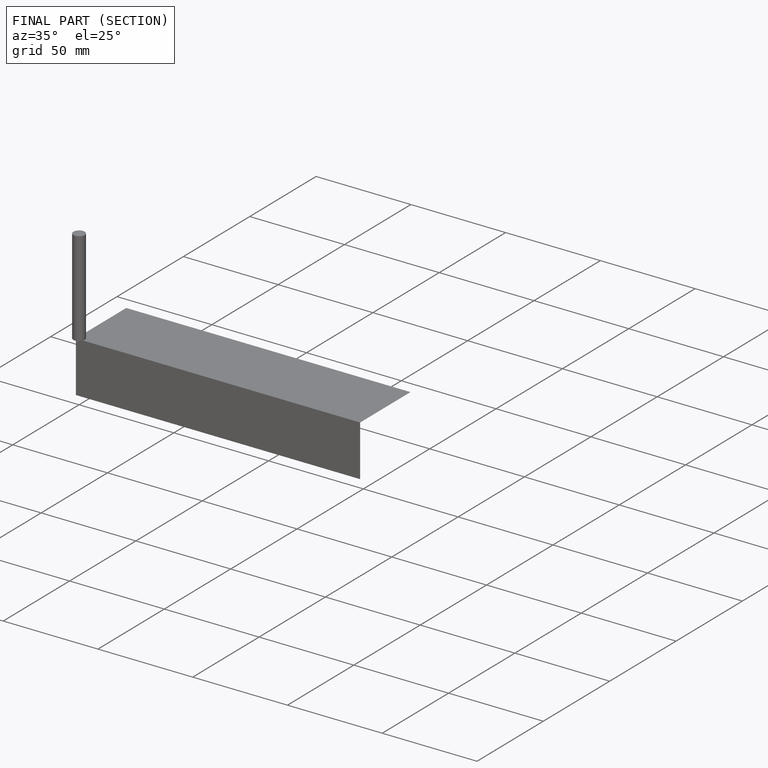
[diagram: finished part — half-section view (interior)]
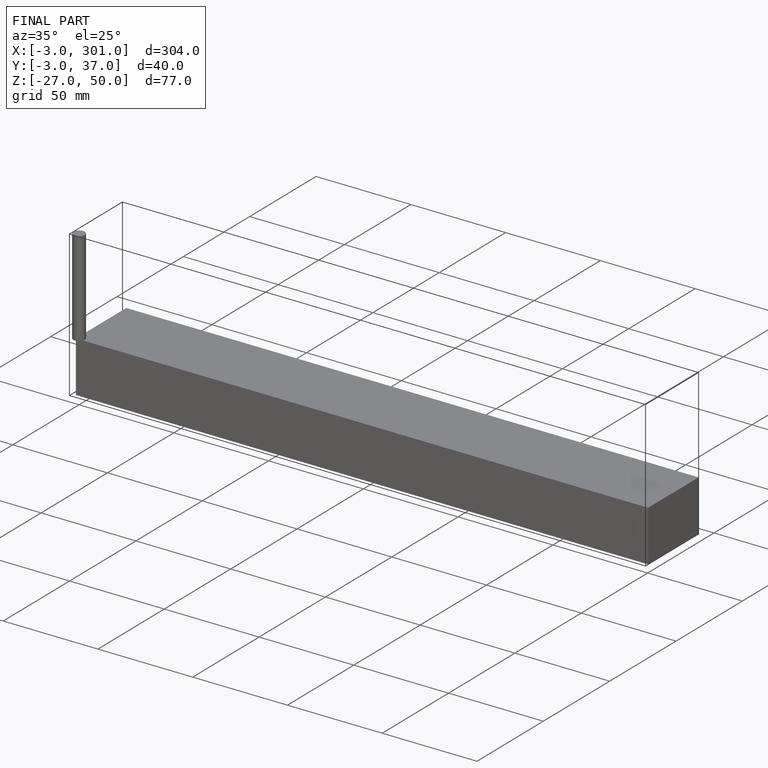
[diagram: finished part — iso view with bounding-box wireframe]
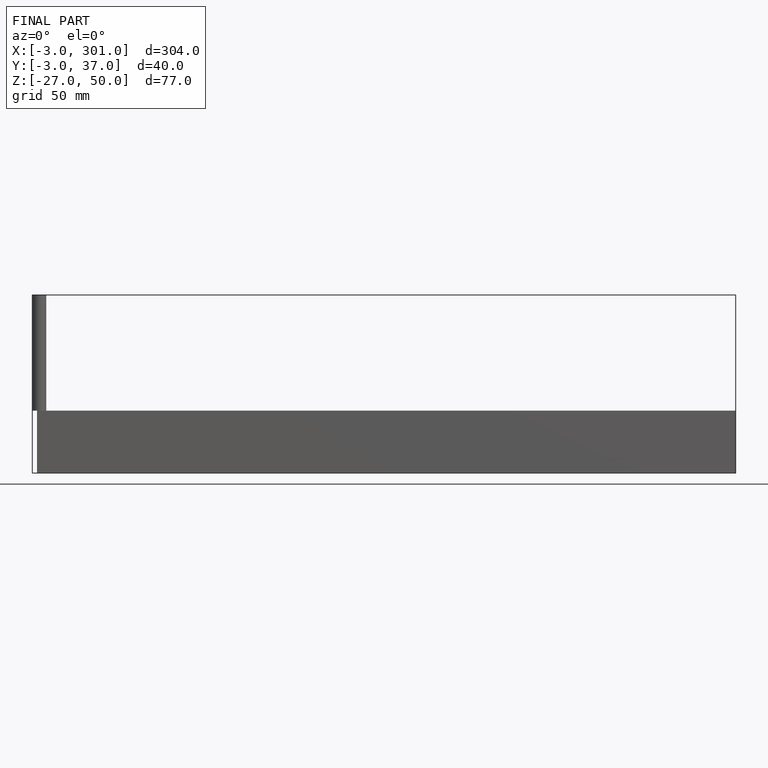
[diagram: finished part — front view with bounding-box wireframe]
